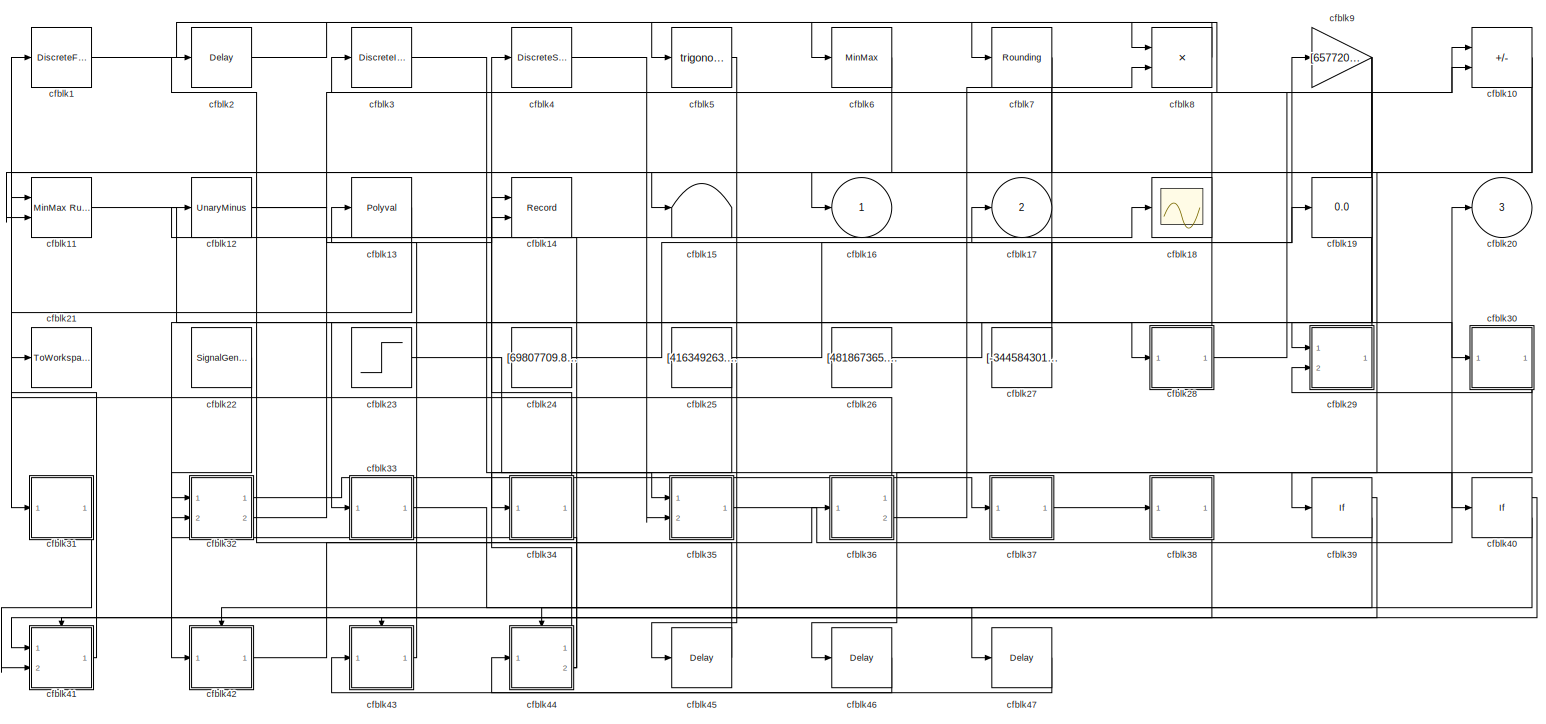
[diagram: root canvas - part 1/1, most of the canvas]
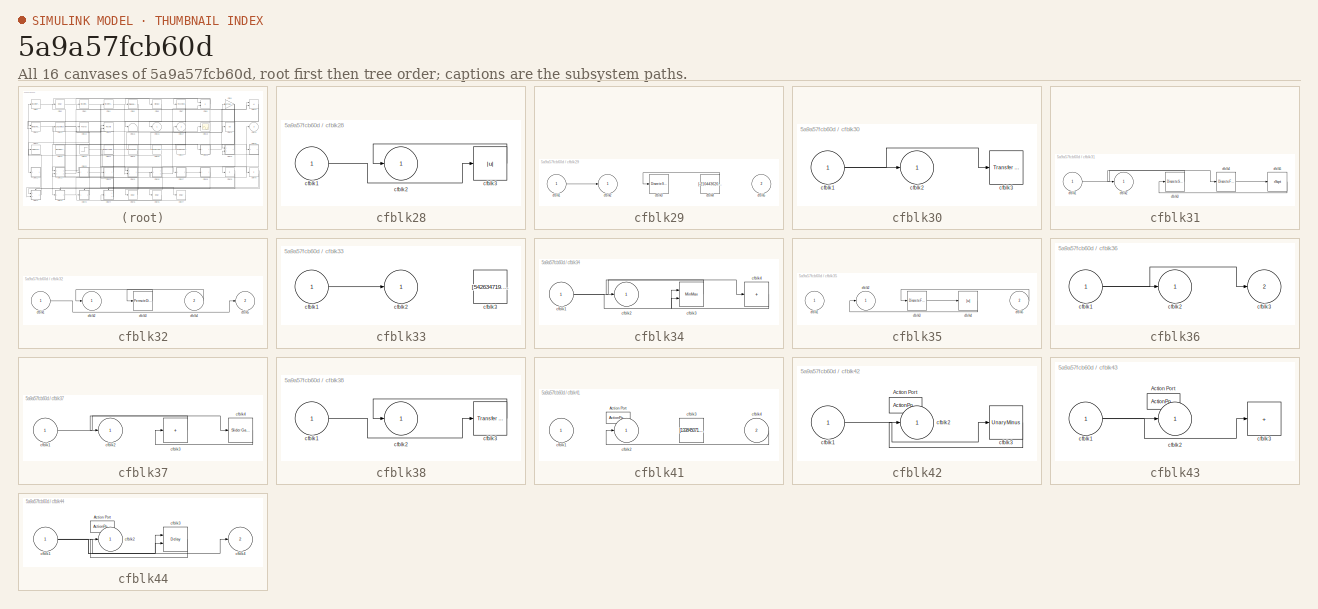
[diagram: thumbnail index - all 16 canvases of the model, root first then tree order]
MODEL slx_5a9a57fcb60d
KIND model
CONFIG AbsTol = auto
CONFIG EnableMultiTasking = off
CONFIG FixedStep = auto
CONFIG MaxStep = auto
CONFIG MinStep = auto
CONFIG RelTol = 1e-3
CONFIG SampleTimeConstraint = Unconstrained
CONFIG SolverName = VariableStepAuto
CONFIG StartTime = 0.0
CONFIG StopTime = 10.0
BLOCK [DiscreteFilter] cfblk1
  InputPortMap = u0
  Ports = [1, 1]
  SampleTime = 1
BLOCK [Sum] cfblk10
  IconShape = rectangular
  Inputs = +-
  Ports = [2, 1]
BLOCK [Reference] cfblk11  REF=simulink/Math
Operations/MinMax
Running
Resettable
  Ports = [2, 1]
  SourceBlock = simulink/Math\nOperations/MinMax\nRunning\nResettable
  SourceProductBaseCode = SL
  SourceType = MinMax Running Resettable
BLOCK [UnaryMinus] cfblk12
BLOCK [Polyval] cfblk13
  Coefs = [ +2.081618890e-019, -1.441693666e-014, +4.719686976e-010, -8.536869453e-006, +1.621573104e-001, -8.087801117e+001 ]
BLOCK [Record] cfblk14
  CompatibilityTag = XY
  FileSettingsInternal = {"entries":[{"content":{"excelSettings":{"content":{},"type":"Streamout.ExcelSettings"}},"type":"Streamout.FileSettingStorage","uuid":"9ac6d932-b654-4180-a5f7-901607cb5b3d"}],"packageUris":["http://schema.mathworks.com/mf0/streamout_blocks/R2020a"],"version":"1.0"}
  Layout = [1 1]
  Ports = [2]
  SignalsInternal = {"entries":[{"content":{"signals":[{"content":{"blockPath":["sampleModel192/cfblk14"],"channel":[],"dimensions":[1],"domain":"sampleModel192/cfblk14","lineColor":"#a2142f","plots":[1],"port":1,"sid":[""],"signalID":7173,"signalName":"cfblk44:1"},"type":"RecordBlkView.Signal","uuid":"3e7a05fb-5f3e-420c-8636-6d6213171b52"},{"content":{"blockPath":["sampleModel192/cfblk14"],"channel":[],"dimensions":...<+385ch>
  VisualizationBindings = {"xyplotplugin":{"info":[{"series":[{"bindingParametersList":[{"parameter":"X-Axis","signalID":7173,"signalName":"cfblk44:1"},{"parameter":"Y-Axis","signalID":7177,"signalName":"cfblk12"}],"seriesID":9250}],"subplotID":1}]}}
BLOCK [Terminator] cfblk15
BLOCK [Outport] cfblk16
BLOCK [Outport] cfblk17
  Port = 2
BLOCK [Scope] cfblk18
  Floating = off
  NumInputPorts = 1
  Ports = [1]
BLOCK [Display] cfblk19
  Decimation = 1
  Ports = [1]
BLOCK [Delay] cfblk2
  InputPortMap = u0
  Ports = [1, 1]
  SampleTime = 1
BLOCK [Outport] cfblk20
  Port = 3
BLOCK [ToWorkspace] cfblk21
  FixptAsFi = on
  MaxDataPoints = inf
  Ports = [1]
  SampleTime = -1
  SaveFormat = Timeseries
  VariableName = ltntrti
BLOCK [SignalGenerator] cfblk22
  Amplitude = [20018358.018870]
  Ports = [0, 1]
  Units = rad/sec
  WaveForm = square
BLOCK [Step] cfblk23
  After = [790231344.462122]
  Before = [-261303681.661120]
  SampleTime = 0
  Time = [37.000000]
BLOCK [Constant] cfblk24
  SampleTime = 1
  Value = [69807709.837979]
BLOCK [Constant] cfblk25
  SampleTime = 1
  Value = [416349263.861054]
BLOCK [Constant] cfblk26
  SampleTime = 1
  Value = [481867365.736076]
BLOCK [Constant] cfblk27
  SampleTime = 1
  Value = [-344584301.270081]
BLOCK [SubSystem] cfblk28
  Ports = [1, 1]
  RequestExecContextInheritance = off
BLOCK [Inport] cfblk28/cfblk1
BLOCK [Outport] cfblk28/cfblk2
BLOCK [Abs] cfblk28/cfblk3
  SaturateOnIntegerOverflow = off
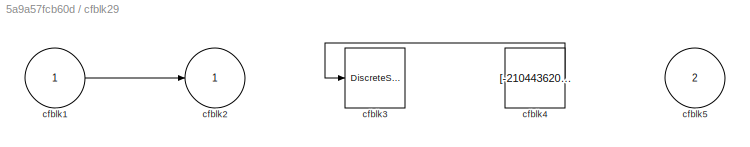
BLOCK [SubSystem] cfblk29
  Ports = [2, 1]
  RequestExecContextInheritance = off
BLOCK [Inport] cfblk29/cfblk1
BLOCK [Outport] cfblk29/cfblk2
BLOCK [DiscreteStateSpace] cfblk29/cfblk3
BLOCK [Constant] cfblk29/cfblk4
  SampleTime = 1
  Value = [-210443620.856176]
BLOCK [Inport] cfblk29/cfblk5
  Port = 2
BLOCK [DiscreteIntegrator] cfblk3
  ICPrevOutput = DiscIntNeverNeededParam
  ICPrevScaledInput = DiscIntNeverNeededParam
  InitialConditionSetting = Auto
  Ports = [1, 1]
BLOCK [SubSystem] cfblk30
  Ports = [1, 1]
  RequestExecContextInheritance = off
BLOCK [Inport] cfblk30/cfblk1
BLOCK [Outport] cfblk30/cfblk2
BLOCK [Reference] cfblk30/cfblk3  REF=simulink/Discrete/Transfer Fcn
First Order
  Ports = [1, 1]
  SourceBlock = simulink/Discrete/Transfer Fcn\nFirst Order
  SourceProductBaseCode = SL
  SourceType = First Order Transfer Fcn
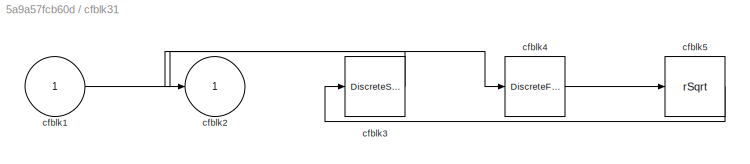
BLOCK [SubSystem] cfblk31
  Ports = [1, 1]
  RequestExecContextInheritance = off
BLOCK [Inport] cfblk31/cfblk1
BLOCK [Outport] cfblk31/cfblk2
BLOCK [DiscreteStateSpace] cfblk31/cfblk3
BLOCK [DiscreteFir] cfblk31/cfblk4
  InputPortMap = u0
  OutputPortMap = o0
  Ports = [1, 1]
  SampleTime = 1
BLOCK [Sqrt] cfblk31/cfblk5
  AlgorithmType = Newton-Raphson
  Operator = rSqrt
BLOCK [SubSystem] cfblk32
  Ports = [2, 2]
  RequestExecContextInheritance = off
BLOCK [Inport] cfblk32/cfblk1
BLOCK [Outport] cfblk32/cfblk2
BLOCK [PermuteDimensions] cfblk32/cfblk3
BLOCK [Inport] cfblk32/cfblk4
  Port = 2
BLOCK [Outport] cfblk32/cfblk5
  Port = 2
BLOCK [SubSystem] cfblk33
  Ports = [1, 1]
  RequestExecContextInheritance = off
BLOCK [Inport] cfblk33/cfblk1
BLOCK [Outport] cfblk33/cfblk2
BLOCK [Constant] cfblk33/cfblk3
  SampleTime = 1
  Value = [542634719.257222]
BLOCK [SubSystem] cfblk34
  Ports = [1, 1]
  RequestExecContextInheritance = off
BLOCK [Inport] cfblk34/cfblk1
BLOCK [Outport] cfblk34/cfblk2
BLOCK [MinMax] cfblk34/cfblk3
  Function = max
  Inputs = 2
  Ports = [2, 1]
BLOCK [Sum] cfblk34/cfblk4
  IconShape = rectangular
  Inputs = +
  Ports = [1, 1]
BLOCK [SubSystem] cfblk35
  Ports = [2, 1]
  RequestExecContextInheritance = off
BLOCK [Inport] cfblk35/cfblk1
BLOCK [Outport] cfblk35/cfblk2
BLOCK [DiscreteFilter] cfblk35/cfblk3
  InputPortMap = u0
  Ports = [1, 1]
  SampleTime = 1
BLOCK [Abs] cfblk35/cfblk4
  SaturateOnIntegerOverflow = off
BLOCK [Inport] cfblk35/cfblk5
  Port = 2
BLOCK [SubSystem] cfblk36
  Ports = [1, 2]
  RequestExecContextInheritance = off
BLOCK [Inport] cfblk36/cfblk1
BLOCK [Outport] cfblk36/cfblk2
BLOCK [Outport] cfblk36/cfblk3
  Port = 2
BLOCK [SubSystem] cfblk37
  Ports = [1, 1]
  RequestExecContextInheritance = off
BLOCK [Inport] cfblk37/cfblk1
BLOCK [Outport] cfblk37/cfblk2
BLOCK [Sum] cfblk37/cfblk3
  IconShape = rectangular
  Inputs = +
  Ports = [1, 1]
BLOCK [Reference] cfblk37/cfblk4  REF=simulink/Math
Operations/Slider
Gain
  Ports = [1, 1]
  SourceBlock = simulink/Math\nOperations/Slider\nGain
  SourceProductBaseCode = SL
  SourceType = Slider Gain
BLOCK [SubSystem] cfblk38
  Ports = [1, 1]
  RequestExecContextInheritance = off
BLOCK [Inport] cfblk38/cfblk1
BLOCK [Outport] cfblk38/cfblk2
BLOCK [Reference] cfblk38/cfblk3  REF=simulink/Discrete/Transfer Fcn
First Order
  Ports = [1, 1]
  SourceBlock = simulink/Discrete/Transfer Fcn\nFirst Order
  SourceProductBaseCode = SL
  SourceType = First Order Transfer Fcn
BLOCK [If] cfblk39
  IfExpression = u1 >= 0
  Ports = [1, 2]
  SampleTime = 1
BLOCK [DiscreteStateSpace] cfblk4
BLOCK [If] cfblk40
  IfExpression = u1 >= 0
  Ports = [1, 2]
  SampleTime = 1
BLOCK [SubSystem] cfblk41
  Ports = [2, 1, 0, 0, 0, 0, 0, 1]
  RequestExecContextInheritance = off
  TreatAsAtomicUnit = on
BLOCK [ActionPort] cfblk41/Action Port
  ActionPortLabel = if(u1 >= 0)
BLOCK [Inport] cfblk41/cfblk1
BLOCK [Outport] cfblk41/cfblk2
BLOCK [Constant] cfblk41/cfblk3
  SampleTime = 1
  Value = [133845071.596005]
BLOCK [Inport] cfblk41/cfblk4
  Port = 2
BLOCK [SubSystem] cfblk42
  Ports = [1, 1, 0, 0, 0, 0, 0, 1]
  RequestExecContextInheritance = off
  TreatAsAtomicUnit = on
BLOCK [ActionPort] cfblk42/Action Port
  ActionPortLabel = else
BLOCK [Inport] cfblk42/cfblk1
BLOCK [Outport] cfblk42/cfblk2
BLOCK [UnaryMinus] cfblk42/cfblk3
BLOCK [SubSystem] cfblk43
  Ports = [1, 1, 0, 0, 0, 0, 0, 1]
  RequestExecContextInheritance = off
  TreatAsAtomicUnit = on
BLOCK [ActionPort] cfblk43/Action Port
  ActionPortLabel = if(u1 >= 0)
BLOCK [Inport] cfblk43/cfblk1
BLOCK [Outport] cfblk43/cfblk2
BLOCK [Sum] cfblk43/cfblk3
  IconShape = rectangular
  Inputs = +
  Ports = [1, 1]
BLOCK [SubSystem] cfblk44
  Ports = [1, 2, 0, 0, 0, 0, 0, 1]
  RequestExecContextInheritance = off
  TreatAsAtomicUnit = on
BLOCK [ActionPort] cfblk44/Action Port
  ActionPortLabel = else
BLOCK [Inport] cfblk44/cfblk1
BLOCK [Outport] cfblk44/cfblk2
BLOCK [Delay] cfblk44/cfblk3
  InputPortMap = u0,e6
  Ports = [2, 1]
  ShowEnablePort = on
BLOCK [Outport] cfblk44/cfblk4
  Port = 2
BLOCK [Delay] cfblk45
  InputPortMap = u0
  Ports = [1, 1]
  SampleTime = 1
BLOCK [Delay] cfblk46
  InputPortMap = u0
  Ports = [1, 1]
  SampleTime = 1
BLOCK [Delay] cfblk47
  InputPortMap = u0
  Ports = [1, 1]
  SampleTime = 1
BLOCK [Trigonometry] cfblk5
  Ports = [1, 1]
BLOCK [MinMax] cfblk6
  Function = max
  Ports = [1, 1]
BLOCK [Rounding] cfblk7
BLOCK [Product] cfblk8
  Inputs = **
  Ports = [2, 1]
BLOCK [Gain] cfblk9
  Gain = [657720486.302416]
NET cfblk10:1 -> cfblk11:1, cfblk39:1
LINE cfblk11:1 -> cfblk30:1
NET cfblk12:1 -> cfblk10:1, cfblk14:2
LINE cfblk13:1 -> cfblk31:1
LINE cfblk1:1 -> cfblk6:1
LINE cfblk22:1 -> cfblk42:1
LINE cfblk23:1 -> cfblk35:2
LINE cfblk24:1 -> cfblk19:1
NET cfblk25:1 -> cfblk34:1, cfblk9:1
LINE cfblk26:1 -> cfblk28:1
LINE cfblk27:1 -> cfblk17:1
LINE cfblk28/cfblk1:1 -> cfblk28/cfblk3:1
LINE cfblk28/cfblk3:1 -> cfblk28/cfblk2:1
NET cfblk28:1 -> cfblk10:2, cfblk3:1
LINE cfblk29/cfblk1:1 -> cfblk29/cfblk2:1
LINE cfblk29/cfblk4:1 -> cfblk29/cfblk3:1
LINE cfblk29:1 -> cfblk7:1
LINE cfblk2:1 -> cfblk8:1
NET cfblk30/cfblk1:1 -> cfblk30/cfblk2:1, cfblk30/cfblk3:1
NET cfblk30:1 -> cfblk29:2, cfblk46:1
LINE cfblk31/cfblk1:1 -> cfblk31/cfblk4:1
LINE cfblk31/cfblk3:1 -> cfblk31/cfblk2:1
LINE cfblk31/cfblk4:1 -> cfblk31/cfblk5:1
LINE cfblk31/cfblk5:1 -> cfblk31/cfblk3:1
LINE cfblk31:1 -> cfblk41:2
LINE cfblk32/cfblk1:1 -> cfblk32/cfblk5:1
LINE cfblk32/cfblk3:1 -> cfblk32/cfblk2:1
LINE cfblk32/cfblk4:1 -> cfblk32/cfblk3:1
LINE cfblk32:1 -> cfblk37:1
LINE cfblk32:2 -> cfblk18:1
LINE cfblk33/cfblk1:1 -> cfblk33/cfblk2:1
LINE cfblk33:1 -> cfblk47:1
NET cfblk34/cfblk1:1 -> cfblk34/cfblk3:2, cfblk34/cfblk4:1
LINE cfblk34/cfblk3:1 -> cfblk34/cfblk2:1
LINE cfblk34/cfblk4:1 -> cfblk34/cfblk3:1
LINE cfblk34:1 -> cfblk4:1
LINE cfblk35/cfblk3:1 -> cfblk35/cfblk4:1
LINE cfblk35/cfblk4:1 -> cfblk35/cfblk2:1
LINE cfblk35/cfblk5:1 -> cfblk35/cfblk3:1
LINE cfblk35:1 -> cfblk20:1
NET cfblk36/cfblk1:1 -> cfblk36/cfblk2:1, cfblk36/cfblk3:1
LINE cfblk36:1 -> cfblk1:1
LINE cfblk36:2 -> cfblk8:2
LINE cfblk37/cfblk1:1 -> cfblk37/cfblk4:1
LINE cfblk37/cfblk3:1 -> cfblk37/cfblk2:1
LINE cfblk37/cfblk4:1 -> cfblk37/cfblk3:1
LINE cfblk37:1 -> cfblk38:1
LINE cfblk38/cfblk1:1 -> cfblk38/cfblk3:1
LINE cfblk38/cfblk3:1 -> cfblk38/cfblk2:1
LINE cfblk38:1 -> cfblk41:1
LINE cfblk39:1 -> cfblk41:ifaction
LINE cfblk39:2 -> cfblk42:ifaction
LINE cfblk3:1 -> cfblk35:1
LINE cfblk40:1 -> cfblk43:ifaction
LINE cfblk40:2 -> cfblk44:ifaction
LINE cfblk41/cfblk4:1 -> cfblk41/cfblk2:1
LINE cfblk41:1 -> cfblk21:1
LINE cfblk42/cfblk1:1 -> cfblk42/cfblk3:1
LINE cfblk42/cfblk3:1 -> cfblk42/cfblk2:1
LINE cfblk42:1 -> cfblk36:1
NET cfblk43/cfblk1:1 -> cfblk43/cfblk2:1, cfblk43/cfblk3:1
LINE cfblk43:1 -> cfblk13:1
NET cfblk44/cfblk1:1 -> cfblk44/cfblk3:1, cfblk44/cfblk3:2, cfblk44/cfblk4:1
LINE cfblk44/cfblk3:1 -> cfblk44/cfblk2:1
LINE cfblk44:1 -> cfblk14:1
NET cfblk44:2 -> cfblk12:1, cfblk32:2
LINE cfblk45:1 -> cfblk2:1
LINE cfblk46:1 -> cfblk43:1
LINE cfblk47:1 -> cfblk44:1
LINE cfblk4:1 -> cfblk40:1
LINE cfblk5:1 -> cfblk45:1
LINE cfblk6:1 -> cfblk16:1
NET cfblk7:1 -> cfblk15:1, cfblk33:1
LINE cfblk8:1 -> cfblk5:1
NET cfblk9:1 -> cfblk11:2, cfblk29:1, cfblk32:1
note: NET lines group one-source signal fan-out (src -> all destinations, sorted); 1:1 wires keep LINE
